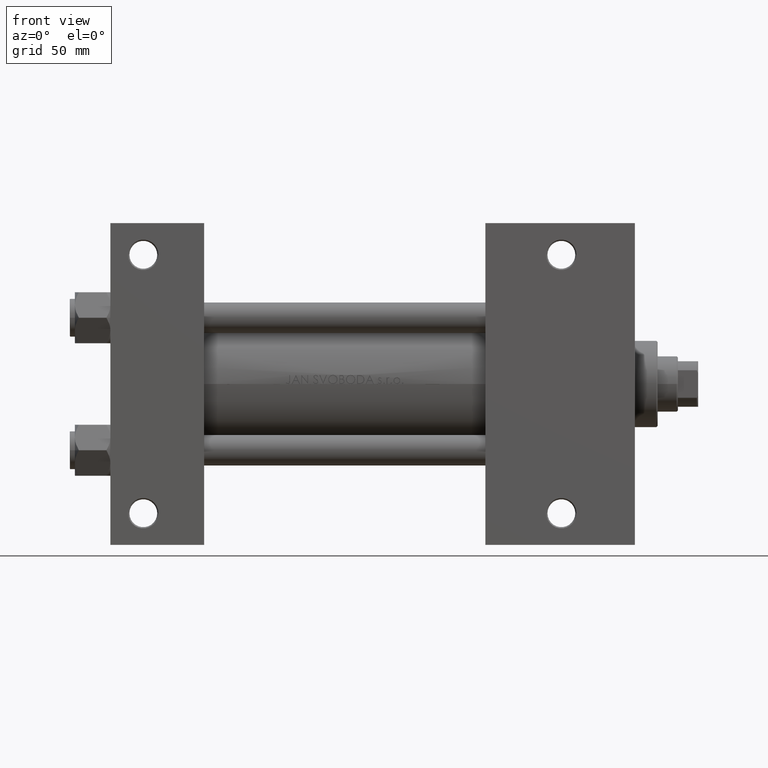
[diagram: clean part render]
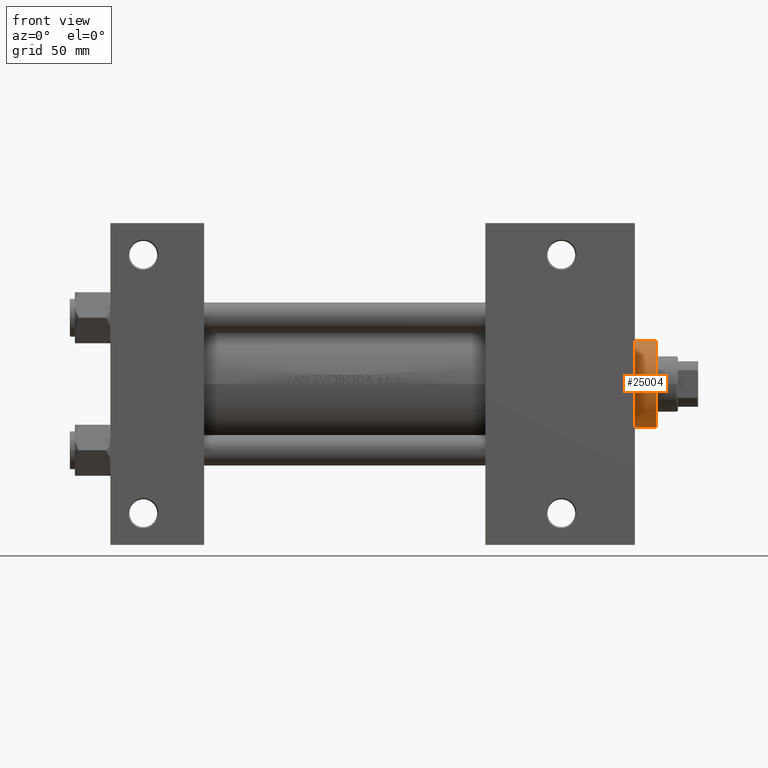
[diagram: same view with one face highlighted and labeled with its STEP entity id]
A machine part, front view. The second image highlights one B-rep face of the part: STEP entity #25004.
In plain terms, the highlighted cylindrical surface (partial cylindrical patch) has radius 17 mm, axis along (-1, -0, 0).
Its self-contained STEP definition (entity closure, byte-faithful):
#256 = CARTESIAN_POINT ( 'NONE',  ( 17.00000000000000000, 2.081899558550500280E-15, 37.69999999999999574 ) ) ;
#1815 = CARTESIAN_POINT ( 'NONE',  ( 0.000000000000000000, 0.000000000000000000, 28.69999999999999929 ) ) ;
#5216 = EDGE_CURVE ( 'NONE', #14796, #6087, #21145, .T. ) ;
#5229 = EDGE_LOOP ( 'NONE', ( #26513, #13249, #5278, #40925 ) ) ;
#5278 = ORIENTED_EDGE ( 'NONE', *, *, #22301, .T. ) ;
#5294 = DIRECTION ( 'NONE',  ( 1.000000000000000000, 0.000000000000000000, 0.000000000000000000 ) ) ;
#5658 = CARTESIAN_POINT ( 'NONE',  ( 17.00000000000000000, 2.081899558550500280E-15, 28.69999999999999929 ) ) ;
#5667 = VERTEX_POINT ( 'NONE', #35254 ) ;
#6087 = VERTEX_POINT ( 'NONE', #8551 ) ;
#7731 = LINE ( 'NONE', #256, #29677 ) ;
#7871 = CARTESIAN_POINT ( 'NONE',  ( 17.00000000000000000, 2.081899558550500280E-15, 37.19999999999999574 ) ) ;
#8551 = CARTESIAN_POINT ( 'NONE',  ( -17.00000000000000000, 0.000000000000000000, 37.19999999999999574 ) ) ;
#8819 = VECTOR ( 'NONE', #30489, 1000.000000000000000 ) ;
#13249 = ORIENTED_EDGE ( 'NONE', *, *, #5216, .T. ) ;
#14590 = CARTESIAN_POINT ( 'NONE',  ( 0.000000000000000000, 0.000000000000000000, 37.69999999999999574 ) ) ;
#14796 = VERTEX_POINT ( 'NONE', #7871 ) ;
#19160 = DIRECTION ( 'NONE',  ( -0.000000000000000000, -0.000000000000000000, -1.000000000000000000 ) ) ;
#21145 = CIRCLE ( 'NONE', #21957, 17.00000000000000000 ) ;
#21631 = AXIS2_PLACEMENT_3D ( 'NONE', #14590, #29803, #33289 ) ;
#21957 = AXIS2_PLACEMENT_3D ( 'NONE', #23436, #38605, #46346 ) ;
#22301 = EDGE_CURVE ( 'NONE', #6087, #5667, #26266, .T. ) ;
#23436 = CARTESIAN_POINT ( 'NONE',  ( 0.000000000000000000, 0.000000000000000000, 37.19999999999999574 ) ) ;
#24951 = AXIS2_PLACEMENT_3D ( 'NONE', #1815, #39396, #5294 ) ;
#25004 = ADVANCED_FACE ( 'NONE', ( #48968 ), #40997, .T. ) ;
#26266 = LINE ( 'NONE', #33476, #8819 ) ;
#26513 = ORIENTED_EDGE ( 'NONE', *, *, #34673, .F. ) ;
#29677 = VECTOR ( 'NONE', #19160, 1000.000000000000000 ) ;
#29803 = DIRECTION ( 'NONE',  ( -0.000000000000000000, -0.000000000000000000, -1.000000000000000000 ) ) ;
#30489 = DIRECTION ( 'NONE',  ( -0.000000000000000000, -0.000000000000000000, -1.000000000000000000 ) ) ;
#33289 = DIRECTION ( 'NONE',  ( -1.000000000000000000, 0.000000000000000000, 0.000000000000000000 ) ) ;
#33476 = CARTESIAN_POINT ( 'NONE',  ( -17.00000000000000000, 0.000000000000000000, 37.69999999999999574 ) ) ;
#34673 = EDGE_CURVE ( 'NONE', #14796, #35160, #7731, .T. ) ;
#35160 = VERTEX_POINT ( 'NONE', #5658 ) ;
#35254 = CARTESIAN_POINT ( 'NONE',  ( -17.00000000000000000, 0.000000000000000000, 28.69999999999999929 ) ) ;
#38605 = DIRECTION ( 'NONE',  ( 0.000000000000000000, 0.000000000000000000, -1.000000000000000000 ) ) ;
#39396 = DIRECTION ( 'NONE',  ( 0.000000000000000000, 0.000000000000000000, 1.000000000000000000 ) ) ;
#40577 = EDGE_CURVE ( 'NONE', #5667, #35160, #44029, .T. ) ;
#40925 = ORIENTED_EDGE ( 'NONE', *, *, #40577, .T. ) ;
#40997 = CYLINDRICAL_SURFACE ( 'NONE', #21631, 17.00000000000000000 ) ;
#44029 = CIRCLE ( 'NONE', #24951, 17.00000000000000000 ) ;
#46346 = DIRECTION ( 'NONE',  ( 1.000000000000000000, 0.000000000000000000, 0.000000000000000000 ) ) ;
#48968 = FACE_OUTER_BOUND ( 'NONE', #5229, .T. ) ;